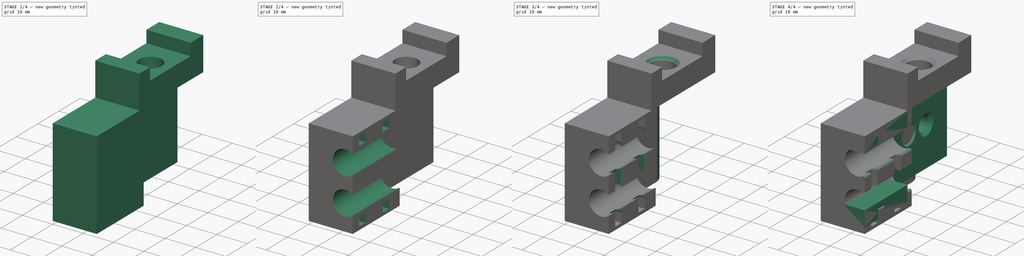
[diagram: build sequence overview — one tinted view per stage of 4, left to right]
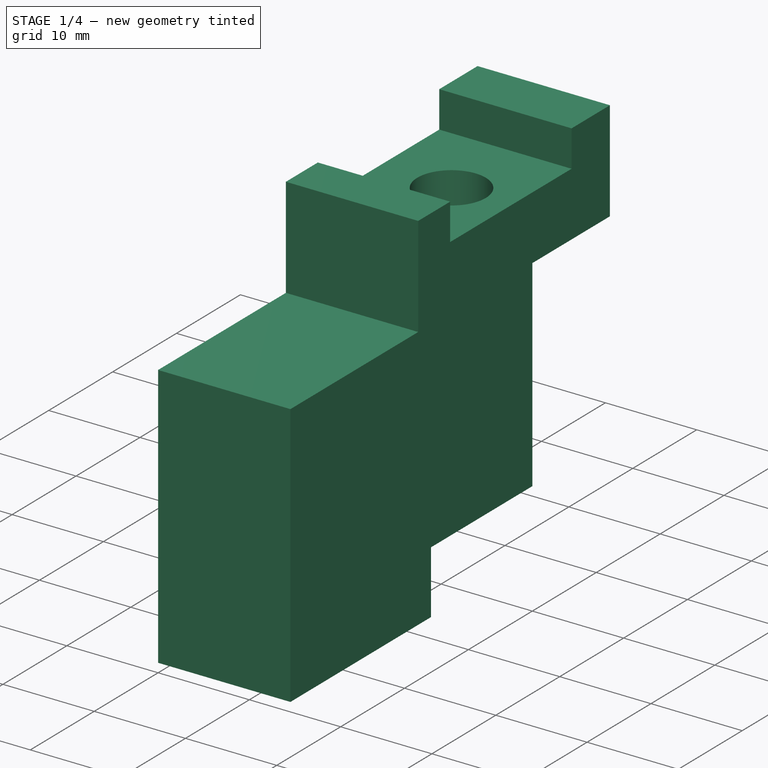
[diagram: stage 1 of 4 — iso view after this stage's code; geometry added in this stage tinted green]
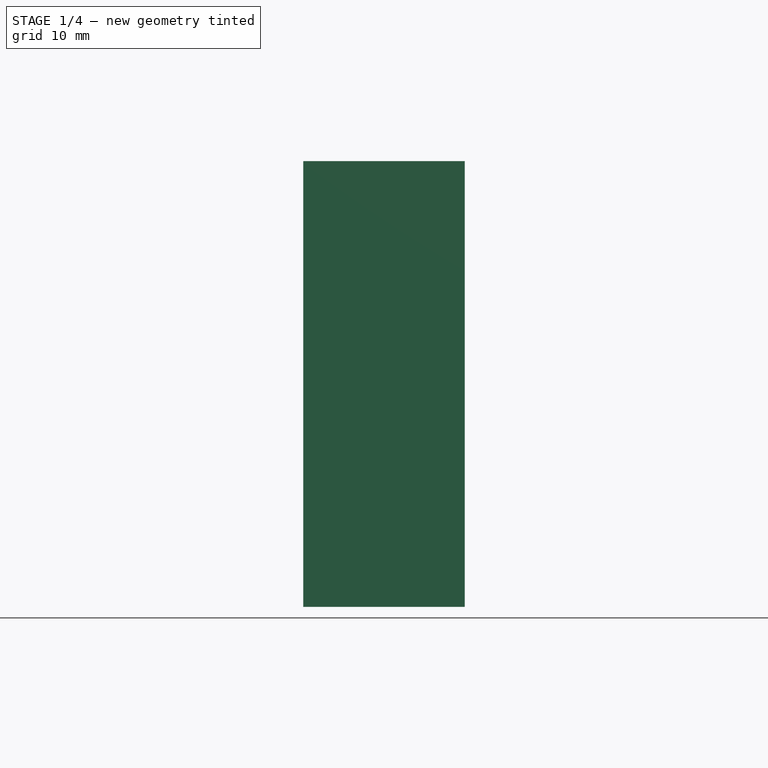
[diagram: stage 1 of 4 — front view after this stage's code; geometry added in this stage tinted green]
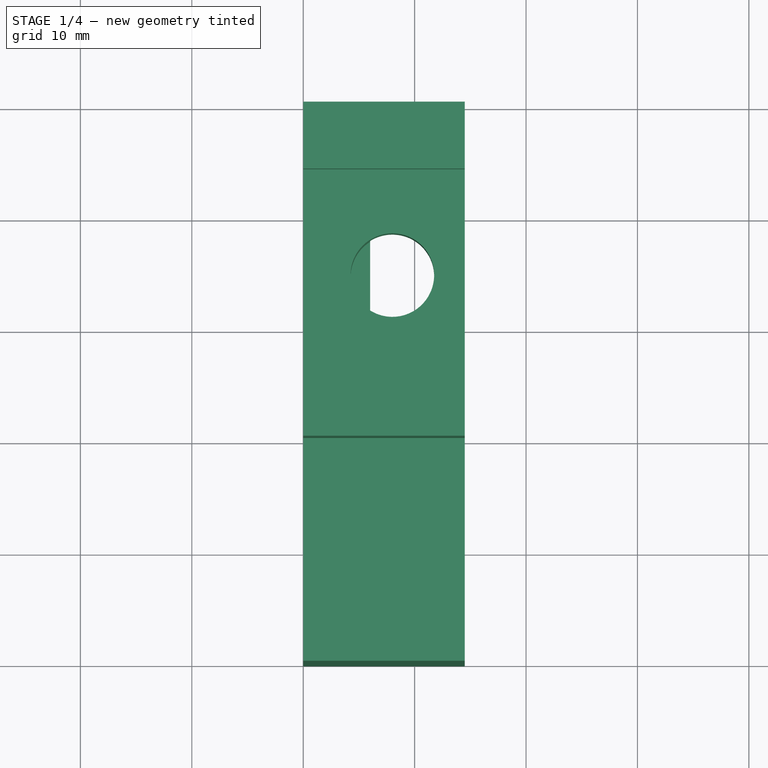
[diagram: stage 1 of 4 — top view after this stage's code; geometry added in this stage tinted green]
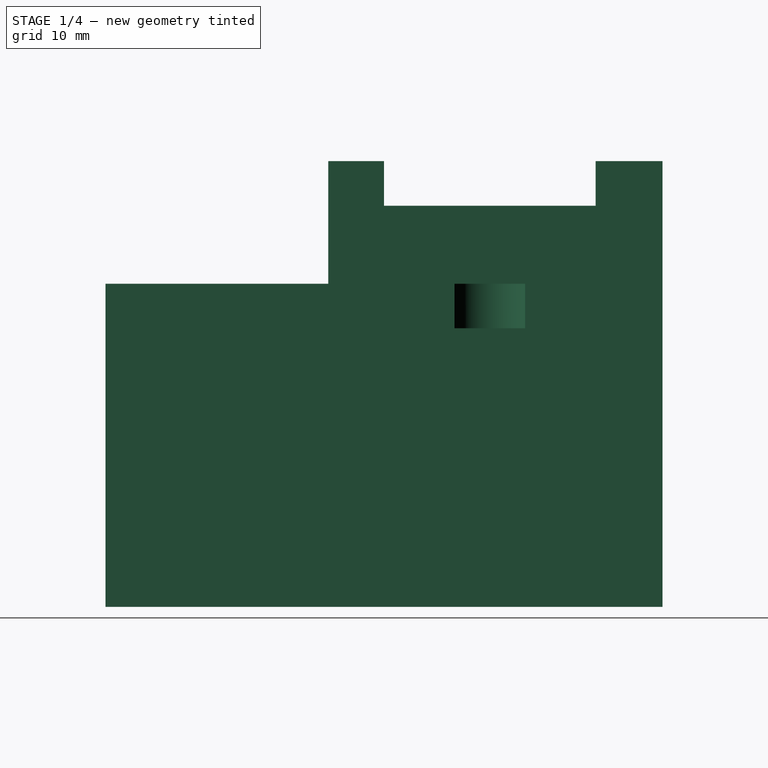
[diagram: stage 1 of 4 — right view after this stage's code; geometry added in this stage tinted green]
FCSTD DOCUMENT  (FreeCAD 0.17R13662 (Git))
Label: y_cable_mount
License: CreativeCommons Attribution-ShareAlike
LicenseURL: http://creativecommons.org/licenses/by-sa/4.0/
objects: Sketcher::SketchObject×8, PartDesign::Pocket×7, PartDesign::Fillet×2, Part::FeaturePython×1, PartDesign::Pad×1, PartDesign::Chamfer×1, PartDesign::Body×1
note: 29 computed .brp shape members not serialized (recipe doc carries the construction recipe); baked Part::Feature solids carry a one-line shape summary decoded from their .brp

FEATURE [Sketcher::SketchObject] Sketch
  MapMode = 5
  Placement = pos=(0,0,0) rot=(0.57735,0.57735,0.57735;2.0944rad)
  Support = -> [YZ_Plane]
  sketch-geometry (10):
    g0: LineSegment StartX=0 StartY=-11 StartZ=0 EndX=20 EndY=-11 EndZ=0
    g1: LineSegment StartX=20 StartY=-11 StartZ=0 EndX=20 EndY=0 EndZ=0
    g2: LineSegment StartX=20 StartY=0 StartZ=0 EndX=25 EndY=0 EndZ=0
    g3: LineSegment StartX=25 StartY=0 StartZ=0 EndX=25 EndY=-4 EndZ=0
    g4: LineSegment StartX=25 StartY=-4 StartZ=0 EndX=44 EndY=-4 EndZ=0
    g5: LineSegment StartX=44 StartY=-4 StartZ=0 EndX=44 EndY=0 EndZ=0
    g6: LineSegment StartX=44 StartY=0 StartZ=0 EndX=50 EndY=0 EndZ=0
    g7: LineSegment StartX=50 StartY=0 StartZ=0 EndX=50 EndY=-40 EndZ=0
    g8: LineSegment StartX=50 StartY=-40 StartZ=0 EndX=0 EndY=-40 EndZ=0
    g9: LineSegment StartX=0 StartY=-40 StartZ=0 EndX=0 EndY=-11 EndZ=0
  constraints (30):
    c: Coincident(g0,g1)
    c: Coincident(g1,g2)
    c: Coincident(g2,g3)
    c: Coincident(g3,g4)
    c: Coincident(g4,g5)
    c: Coincident(g5,g6)
    c: Coincident(g6,g7)
    c: Coincident(g7,g8)
    c: Coincident(g8,g9)
    c: Coincident(g0,g9)
    c: PointOnObject(g1,g-1)
    c: PointOnObject(g5,g-1)
    c: Vertical(g5)
    c: Vertical(g3)
    c: Vertical(g1)
    c: Vertical(g9)
    c: Vertical(g7)
    c: Horizontal(g6)
    c: Horizontal(g2)
    c: Horizontal(g4)
    c: Horizontal(g0)
    c: Horizontal(g8)
    c: DistanceX(g1) = 20
    c: DistanceX(g2,g2) = 5
    c: DistanceY(g3,g3) = 4
    c: DistanceX(g4,g4) = 19
    c: DistanceX(g6,g6) = 6
    c: DistanceY(g7,g7) = 40
    c: DistanceY(g1,g1) = 11
    c: PointOnObject(g0,g-2)
FEATURE [PartDesign::Pad] Pad
  Length = 14.5
  Length2 = 100
  Placement = pos=(0,0,0) rot=(0.57735,0.57735,0.57735;2.0944rad)
  Profile = -> Sketch
  Type = 0
FEATURE [Sketcher::SketchObject] Sketch001
  MapMode = 5
  Placement = pos=(0,0,-4) rot=(0,0,-1;1.5708rad)
  Support = -> [Pad]
  sketch-geometry (1):
    g0: Circle CenterX=-34.5 CenterY=8 CenterZ=0 NormalX=0 NormalY=0 NormalZ=1 AngleXU=0 Radius=3.75
  constraints (3):
    c: DistanceX(g0) = -34.5
    c: DistanceY(g0) = 8
    c: Radius(g0) = 3.75
FEATURE [PartDesign::Pocket] Pocket
  BaseFeature = -> Pad
  Length = 11
  Length2 = 100
  Placement = pos=(0,0,0) rot=(0.57735,0.57735,0.57735;2.0944rad)
  Profile = -> Sketch001
  Type = 0
FEATURE [Sketcher::SketchObject] Sketch002
  MapMode = 5
  Placement = pos=(6e-12,50,-6e-12) rot=(0.57735,0.57735,0.57735;4.18879rad)
  Support = -> [Pocket]
  sketch-geometry (4):
    g0: LineSegment StartX=-40 StartY=14.5 StartZ=0 EndX=-11 EndY=14.5 EndZ=0
    g1: LineSegment StartX=-11 StartY=14.5 StartZ=0 EndX=-11 EndY=6 EndZ=0
    g2: LineSegment StartX=-11 StartY=6 StartZ=0 EndX=-40 EndY=6 EndZ=0
    g3: LineSegment StartX=-40 StartY=6 StartZ=0 EndX=-40 EndY=14.5 EndZ=0
  constraints (12):
    c: Coincident(g0,g1)
    c: Coincident(g1,g2)
    c: Coincident(g2,g3)
    c: Coincident(g3,g0)
    c: Horizontal(g0)
    c: Horizontal(g2)
    c: Vertical(g1)
    c: Vertical(g3)
    c: DistanceX(g1) = -11
    c: DistanceY(g1) = 6
    c: DistanceY(g1,g1) = 8.5
    c: DistanceX(g2,g2) = 29
FEATURE [PartDesign::Pocket] Pocket001
  BaseFeature = -> Pocket
  Length = 28
  Length2 = 100
  Placement = pos=(0,0,0) rot=(0.57735,0.57735,0.57735;2.0944rad)
  Profile = -> Sketch002
  Type = 0
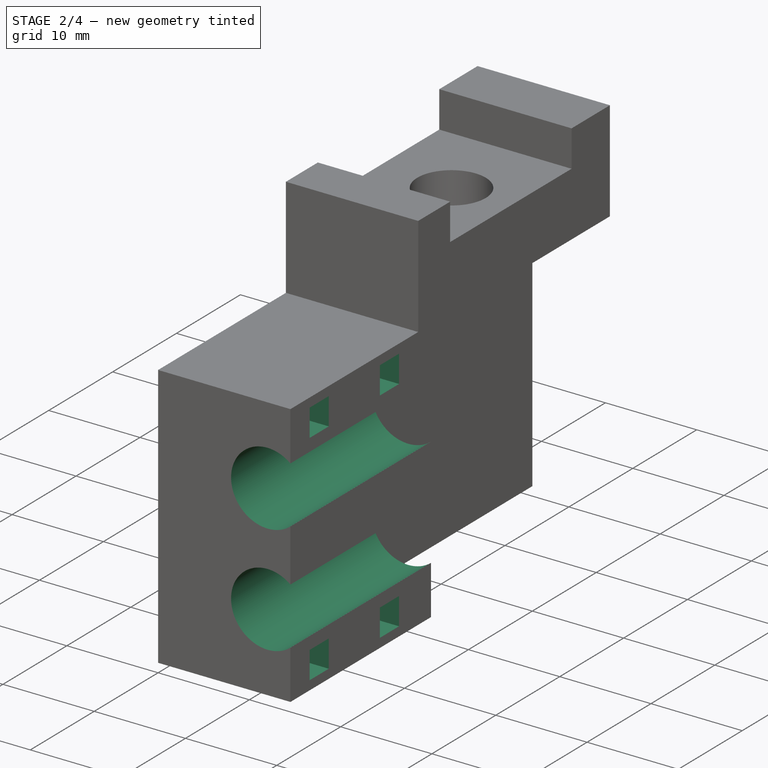
[diagram: stage 2 of 4 — iso view after this stage's code; geometry added in this stage tinted green]
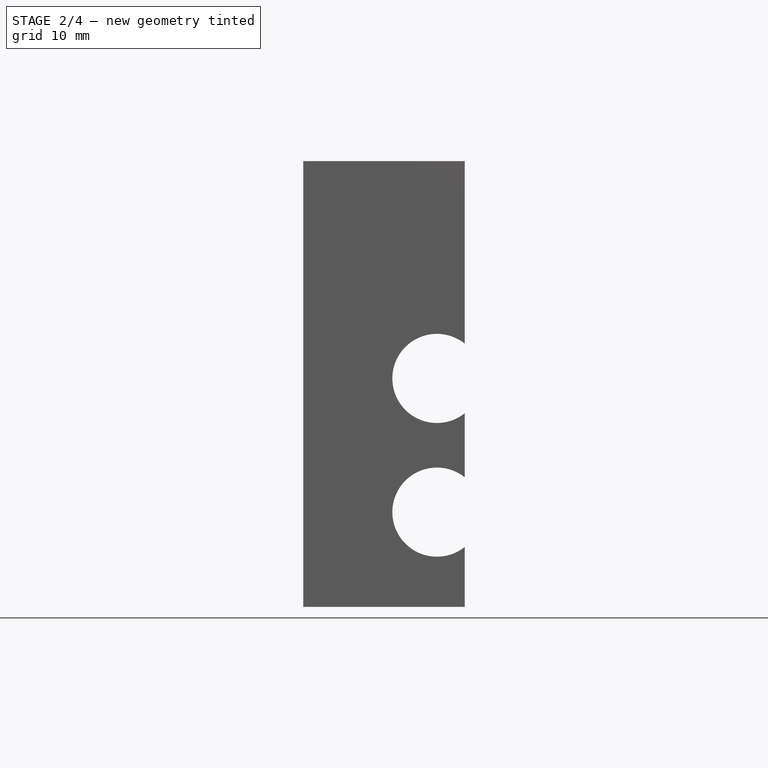
[diagram: stage 2 of 4 — front view after this stage's code; geometry added in this stage tinted green]
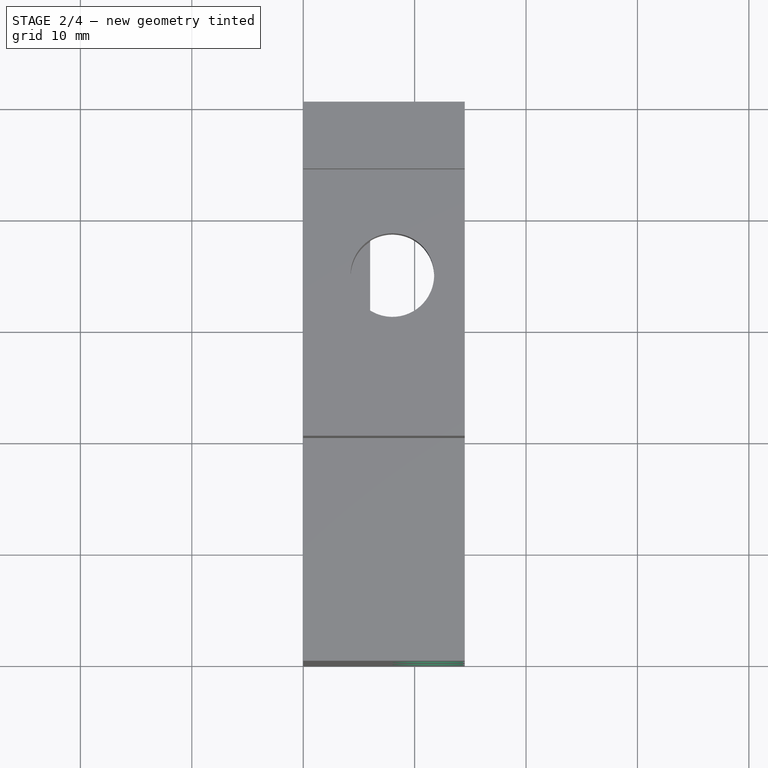
[diagram: stage 2 of 4 — top view after this stage's code; geometry added in this stage tinted green]
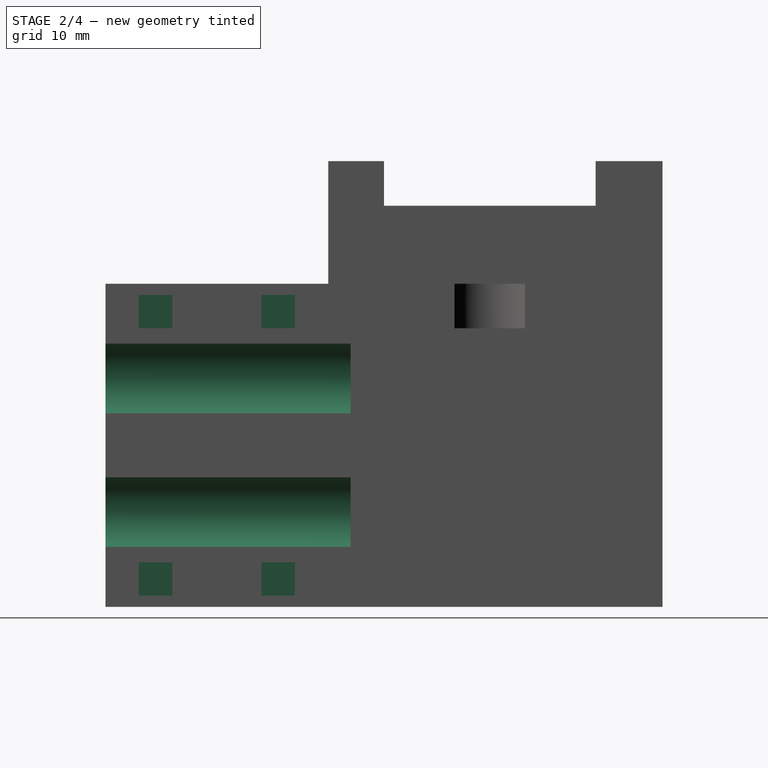
[diagram: stage 2 of 4 — right view after this stage's code; geometry added in this stage tinted green]
FEATURE [Sketcher::SketchObject] Sketch003
  MapMode = 5
  Placement = pos=(2e-12,22,-2e-12) rot=(0.57735,0.57735,0.57735;4.18879rad)
  Support = -> [Pocket001]
  sketch-geometry (2):
    g0: Circle CenterX=-19.5 CenterY=12 CenterZ=0 NormalX=0 NormalY=0 NormalZ=1 AngleXU=0 Radius=4
    g1: Circle CenterX=-31.5 CenterY=12 CenterZ=0 NormalX=0 NormalY=0 NormalZ=1 AngleXU=0 Radius=4
  constraints (6):
    c: DistanceX(g0) = -19.5
    c: DistanceY(g0) = 12
    c: Radius(g0) = 4
    c: DistanceX(g1,g0) = 12
    c: DistanceY(g1,g0) = 0
    c: Equal(g1,g0)
FEATURE [PartDesign::Pocket] Pocket002
  BaseFeature = -> Pocket001
  Length = 5
  Length2 = 100
  Placement = pos=(0,0,0) rot=(0.57735,0.57735,0.57735;2.0944rad)
  Profile = -> Sketch003
  Type = 1
FEATURE [Sketcher::SketchObject] Sketch004
  MapMode = 5
  Placement = pos=(14.5,-2e-12,2e-12) rot=(0.57735,0.57735,0.57735;2.0944rad)
  Support = -> [Pocket002]
  sketch-geometry (28):
    g0: LineSegment StartX=3 StartY=-12 StartZ=0 EndX=6 EndY=-12 EndZ=0
    g1: LineSegment StartX=6 StartY=-12 StartZ=0 EndX=6 EndY=-15 EndZ=0
    g2: LineSegment StartX=6 StartY=-15 StartZ=0 EndX=3 EndY=-15 EndZ=0
    g3: LineSegment StartX=3 StartY=-15 StartZ=0 EndX=3 EndY=-12 EndZ=0
    g4: LineSegment StartX=14 StartY=-12 StartZ=0 EndX=17 EndY=-12 EndZ=0
    g5: LineSegment StartX=17 StartY=-12 StartZ=0 EndX=17 EndY=-15 EndZ=0
    g6: LineSegment StartX=17 StartY=-15 StartZ=0 EndX=14 EndY=-15 EndZ=0
    g7: LineSegment StartX=14 StartY=-15 StartZ=0 EndX=14 EndY=-12 EndZ=0
    g8: LineSegment StartX=14 StartY=-36 StartZ=0 EndX=17 EndY=-36 EndZ=0
    g9: LineSegment StartX=17 StartY=-36 StartZ=0 EndX=17 EndY=-39 EndZ=0
    g10: LineSegment StartX=17 StartY=-39 StartZ=0 EndX=14 EndY=-39 EndZ=0
    g11: LineSegment StartX=14 StartY=-39 StartZ=0 EndX=14 EndY=-36 EndZ=0
    g12: LineSegment StartX=3 StartY=-36 StartZ=0 EndX=6 EndY=-36 EndZ=0
    g13: LineSegment StartX=6 StartY=-36 StartZ=0 EndX=6 EndY=-39 EndZ=0
    g14: LineSegment StartX=6 StartY=-39 StartZ=0 EndX=3 EndY=-39 EndZ=0
    g15: LineSegment StartX=3 StartY=-39 StartZ=0 EndX=3 EndY=-36 EndZ=0
    g16: LineSegment [constr] StartX=3 StartY=-15 StartZ=0 EndX=6 EndY=-15 EndZ=0
    g17: LineSegment [constr] StartX=6 StartY=-15 StartZ=0 EndX=6 EndY=-36 EndZ=0
    g18: LineSegment [constr] StartX=6 StartY=-36 StartZ=0 EndX=3 EndY=-36 EndZ=0
    g19: LineSegment [constr] StartX=3 StartY=-36 StartZ=0 EndX=3 EndY=-15 EndZ=0
    g20: LineSegment [constr] StartX=14 StartY=-15 StartZ=0 EndX=17 EndY=-15 EndZ=0
    g21: LineSegment [constr] StartX=17 StartY=-15 StartZ=0 EndX=17 EndY=-36 EndZ=0
    g22: LineSegment [constr] StartX=17 StartY=-36 StartZ=0 EndX=14 EndY=-36 EndZ=0
    g23: LineSegment [constr] StartX=14 StartY=-36 StartZ=0 EndX=14 EndY=-15 EndZ=0
    g24: LineSegment [constr] StartX=6 StartY=-12 StartZ=0 EndX=14 EndY=-12 EndZ=0
    g25: LineSegment [constr] StartX=14 StartY=-12 StartZ=0 EndX=14 EndY=-15 EndZ=0
    g26: LineSegment [constr] StartX=14 StartY=-15 StartZ=0 EndX=6 EndY=-15 EndZ=0
    g27: LineSegment [constr] StartX=6 StartY=-15 StartZ=0 EndX=6 EndY=-12 EndZ=0
  constraints (78):
    c: Coincident(g0,g1)
    c: Coincident(g1,g2)
    c: Coincident(g2,g3)
    c: Coincident(g3,g0)
    c: Horizontal(g0)
    c: Horizontal(g2)
    c: Vertical(g1)
    c: Vertical(g3)
    c: Coincident(g4,g5)
    c: Coincident(g5,g6)
    c: Coincident(g6,g7)
    c: Coincident(g7,g4)
    c: Horizontal(g4)
    c: Horizontal(g6)
    c: Vertical(g5)
    c: Vertical(g7)
    c: Coincident(g8,g9)
    c: Coincident(g9,g10)
    c: Coincident(g10,g11)
    c: Coincident(g11,g8)
    c: Horizontal(g8)
    c: Horizontal(g10)
    c: Vertical(g9)
    c: Vertical(g11)
    c: Coincident(g12,g13)
    c: Coincident(g13,g14)
    c: Coincident(g14,g15)
    c: Coincident(g15,g12)
    c: Horizontal(g12)
    c: Horizontal(g14)
    c: Vertical(g13)
    c: Vertical(g15)
    c: Coincident(g16,g17)
    c: Coincident(g17,g18)
    c: Coincident(g18,g19)
    c: Coincident(g19,g16)
    c: Horizontal(g16)
    c: Horizontal(g18)
    c: Vertical(g17)
    c: Vertical(g19)
    c: Coincident(g20,g21)
    c: Coincident(g21,g22)
    c: Coincident(g22,g23)
    c: Coincident(g23,g20)
    c: Horizontal(g20)
    c: Horizontal(g22)
    c: Vertical(g21)
    c: Vertical(g23)
    c: Coincident(g8,g21)
    c: Coincident(g5,g20)
    c: Coincident(g6,g20)
    c: Coincident(g8,g22)
    c: Coincident(g12,g17)
    c: Coincident(g12,g18)
    c: Coincident(g1,g16)
    c: Coincident(g2,g16)
    c: Equal(g2,g1)
    c: Equal(g1,g7)
    c: Equal(g7,g6)
    c: Equal(g6,g9)
    c: Equal(g9,g13)
    c: DistanceY(g5,g5) = 3
    c: DistanceY(g0) = -12
    c: DistanceY(g19,g19) = 21
    c: DistanceX(g0) = 3
    c: Coincident(g24,g25)
    c: Coincident(g25,g26)
    c: Coincident(g26,g27)
    c: Coincident(g27,g24)
    c: Horizontal(g24)
    c: Horizontal(g26)
    c: Vertical(g25)
    c: Vertical(g27)
    c: Coincident(g4,g24)
    c: Coincident(g6,g25)
    c: Coincident(g0,g24)
    c: DistanceX(g26,g26) = 8
    c: Equal(g23,g17)
FEATURE [PartDesign::Pocket] Pocket003
  BaseFeature = -> Pocket002
  Length = 12
  Length2 = 100
  Placement = pos=(0,0,0) rot=(0.57735,0.57735,0.57735;2.0944rad)
  Profile = -> Sketch004
  Type = 0
FEATURE [Sketcher::SketchObject] Sketch005
  MapMode = 5
  Placement = pos=(1e-12,-1e-12,-12) rot=(0.707107,0.707107,0;3.14159rad)
  Support = -> [Pocket003]
  sketch-geometry (12):
    g0: LineSegment StartX=3 StartY=2.5 StartZ=0 EndX=6 EndY=2.5 EndZ=0
    g1: LineSegment StartX=6 StartY=2.5 StartZ=0 EndX=6 EndY=5.5 EndZ=0
    g2: LineSegment StartX=6 StartY=5.5 StartZ=0 EndX=3 EndY=5.5 EndZ=0
    g3: LineSegment StartX=3 StartY=5.5 StartZ=0 EndX=3 EndY=2.5 EndZ=0
    g4: LineSegment StartX=14 StartY=2.5 StartZ=0 EndX=17 EndY=2.5 EndZ=0
    g5: LineSegment StartX=17 StartY=2.5 StartZ=0 EndX=17 EndY=5.5 EndZ=0
    g6: LineSegment StartX=17 StartY=5.5 StartZ=0 EndX=14 EndY=5.5 EndZ=0
    g7: LineSegment StartX=14 StartY=5.5 StartZ=0 EndX=14 EndY=2.5 EndZ=0
    g8: LineSegment [constr] StartX=6 StartY=5.5 StartZ=0 EndX=14 EndY=5.5 EndZ=0
    g9: LineSegment [constr] StartX=14 StartY=5.5 StartZ=0 EndX=14 EndY=2.5 EndZ=0
    g10: LineSegment [constr] StartX=14 StartY=2.5 StartZ=0 EndX=6 EndY=2.5 EndZ=0
    g11: LineSegment [constr] StartX=6 StartY=2.5 StartZ=0 EndX=6 EndY=5.5 EndZ=0
  constraints (34):
    c: Coincident(g0,g1)
    c: Coincident(g1,g2)
    c: Coincident(g2,g3)
    c: Coincident(g3,g0)
    c: Horizontal(g0)
    c: Horizontal(g2)
    c: Vertical(g1)
    c: Vertical(g3)
    c: Coincident(g4,g5)
    c: Coincident(g5,g6)
    c: Coincident(g6,g7)
    c: Coincident(g7,g4)
    c: Horizontal(g4)
    c: Horizontal(g6)
    c: Vertical(g5)
    c: Vertical(g7)
    c: DistanceX(g0) = 3
    c: DistanceY(g0) = 2.5
    c: Equal(g3,g2)
    c: DistanceX(g2,g2) = 3
    c: Coincident(g8,g9)
    c: Coincident(g9,g10)
    c: Coincident(g10,g11)
    c: Coincident(g11,g8)
    c: Horizontal(g8)
    c: Horizontal(g10)
    c: Vertical(g9)
    c: Vertical(g11)
    c: Coincident(g4,g9)
    c: Coincident(g1,g8)
    c: Coincident(g0,g10)
    c: Coincident(g6,g8)
    c: DistanceX(g8,g8) = 8
    c: Equal(g6,g2)
FEATURE [PartDesign::Pocket] Pocket004
  BaseFeature = -> Pocket003
  Length = 27
  Length2 = 100
  Placement = pos=(0,0,0) rot=(0.57735,0.57735,0.57735;2.0944rad)
  Profile = -> Sketch005
  Reversed = true
  Type = 0
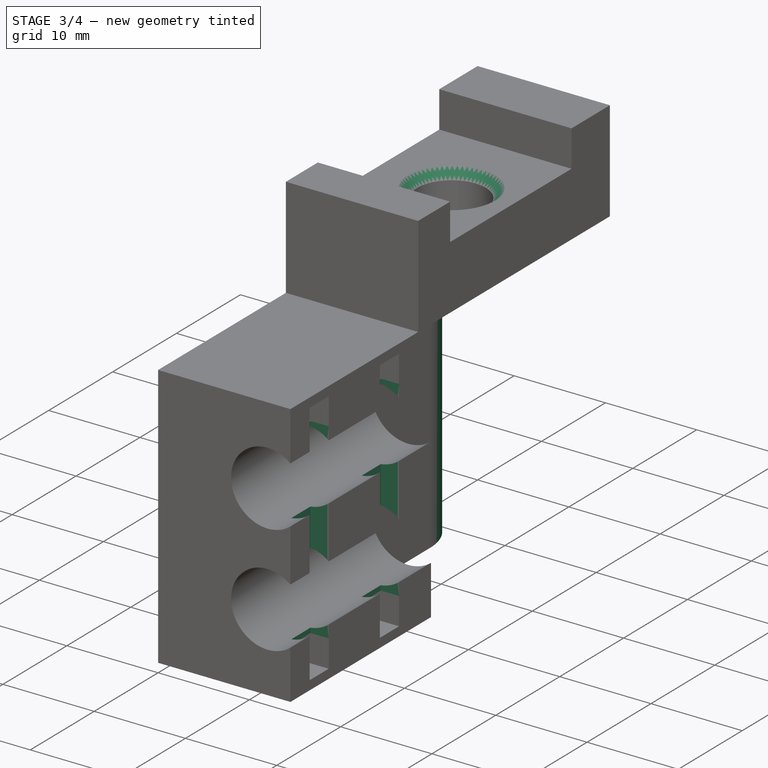
[diagram: stage 3 of 4 — iso view after this stage's code; geometry added in this stage tinted green]
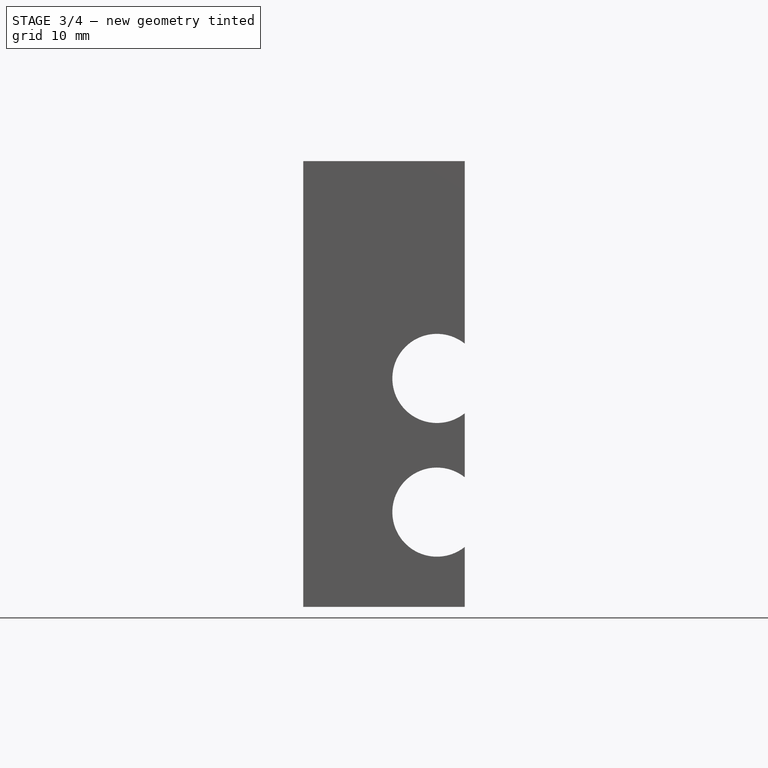
[diagram: stage 3 of 4 — front view after this stage's code; geometry added in this stage tinted green]
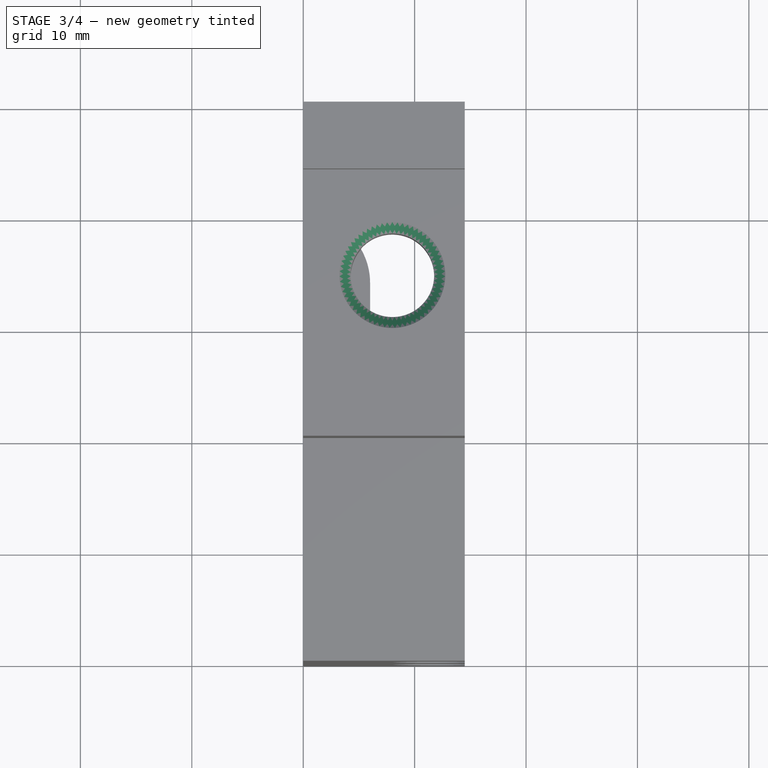
[diagram: stage 3 of 4 — top view after this stage's code; geometry added in this stage tinted green]
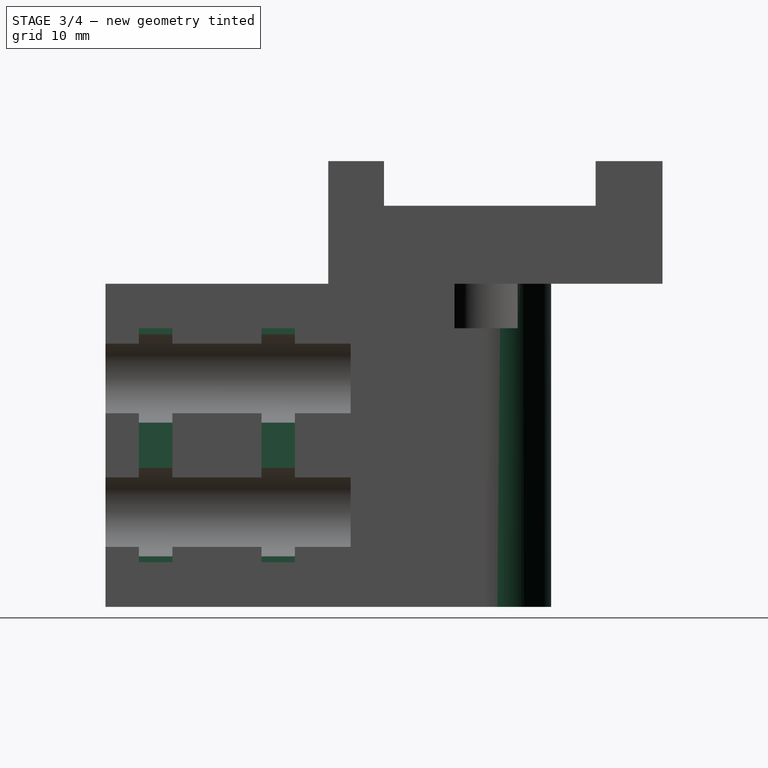
[diagram: stage 3 of 4 — right view after this stage's code; geometry added in this stage tinted green]
FEATURE [Sketcher::SketchObject] Sketch006
  MapMode = 5
  Placement = pos=(14.5,-2e-12,2e-12) rot=(0.57735,0.57735,0.57735;2.0944rad)
  Support = -> [Pocket004]
  sketch-geometry (8):
    g0: LineSegment StartX=3 StartY=-15 StartZ=0 EndX=6 EndY=-15 EndZ=0
    g1: LineSegment StartX=6 StartY=-15 StartZ=0 EndX=6 EndY=-36 EndZ=0
    g2: LineSegment StartX=6 StartY=-36 StartZ=0 EndX=3 EndY=-36 EndZ=0
    g3: LineSegment StartX=3 StartY=-36 StartZ=0 EndX=3 EndY=-15 EndZ=0
    g4: LineSegment StartX=14 StartY=-15 StartZ=0 EndX=17 EndY=-15 EndZ=0
    g5: LineSegment StartX=17 StartY=-15 StartZ=0 EndX=17 EndY=-36 EndZ=0
    g6: LineSegment StartX=17 StartY=-36 StartZ=0 EndX=14 EndY=-36 EndZ=0
    g7: LineSegment StartX=14 StartY=-36 StartZ=0 EndX=14 EndY=-15 EndZ=0
  constraints (24):
    c: Coincident(g0,g1)
    c: Coincident(g1,g2)
    c: Coincident(g2,g3)
    c: Coincident(g3,g0)
    c: Horizontal(g0)
    c: Horizontal(g2)
    c: Vertical(g1)
    c: Vertical(g3)
    c: Coincident(g4,g5)
    c: Coincident(g5,g6)
    c: Coincident(g6,g7)
    c: Coincident(g7,g4)
    c: Horizontal(g4)
    c: Horizontal(g6)
    c: Vertical(g5)
    c: Vertical(g7)
    c: DistanceX(g0) = 3
    c: DistanceY(g0) = -15
    c: DistanceY(g3,g3) = 21
    c: PointOnObject(g4,g0)
    c: DistanceX(g0,g4) = 8
    c: Equal(g4,g0)
    c: Equal(g7,g1)
    c: DistanceX(g0,g0) = 3
FEATURE [PartDesign::Pocket] Pocket005
  BaseFeature = -> Pocket004
  Length = 2
  Length2 = 100
  Placement = pos=(0,0,0) rot=(0.57735,0.57735,0.57735;2.0944rad)
  Profile = -> Sketch006
  Type = 0
FEATURE [Sketcher::SketchObject] Sketch007
  MapMode = 5
  Placement = pos=(5e-12,-5e-12,-40) rot=(0.707107,0.707107,0;3.14159rad)
  Support = -> [Pocket005]
  sketch-geometry (4):
    g0: ArcOfCircle CenterX=34 CenterY=0 CenterZ=0 NormalX=0 NormalY=0 NormalZ=1 AngleXU=0 Radius=6 StartAngle=0 EndAngle=1.5708
    g1: LineSegment StartX=34 StartY=6 StartZ=0 EndX=50 EndY=6 EndZ=0
    g2: LineSegment StartX=50 StartY=6 StartZ=0 EndX=50 EndY=0 EndZ=0
    g3: LineSegment StartX=50 StartY=0 StartZ=0 EndX=40 EndY=0 EndZ=0
  constraints (13):
    c: Coincident(g1,g2)
    c: Coincident(g2,g3)
    c: Coincident(g0,g3)
    c: Horizontal(g3)
    c: Horizontal(g1)
    c: Vertical(g2)
    c: PointOnObject(g0,g-1)
    c: PointOnObject(g0,g-1)
    c: DistanceX(g0,g0) = 0
    c: Coincident(g0,g1)
    c: DistanceY(g0) = 6
    c: DistanceX(g2) = 50
    c: DistanceX(g0) = 40
FEATURE [PartDesign::Pocket] Pocket006
  BaseFeature = -> Pocket005
  Length = 29
  Length2 = 100
  Placement = pos=(0,0,0) rot=(0.57735,0.57735,0.57735;2.0944rad)
  Profile = -> Sketch007
  Type = 0
FEATURE [PartDesign::Chamfer] Chamfer
  Base = -> Pocket006 [Edge115]
  BaseFeature = -> Pocket006
  Placement = pos=(0,0,0) rot=(0.57735,0.57735,0.57735;2.0944rad)
  Size = 1
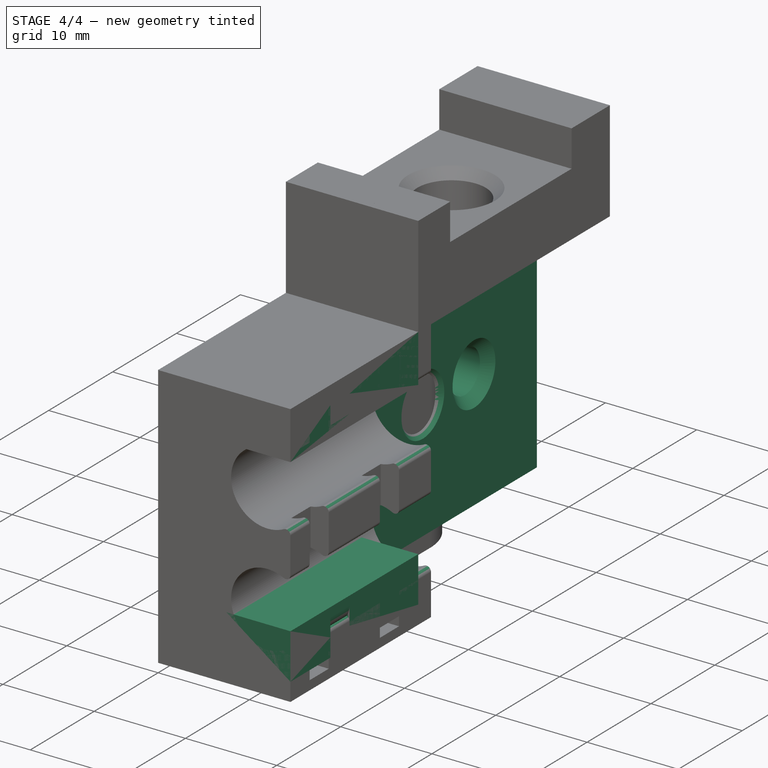
[diagram: stage 4 of 4 — iso view after this stage's code; geometry added in this stage tinted green]
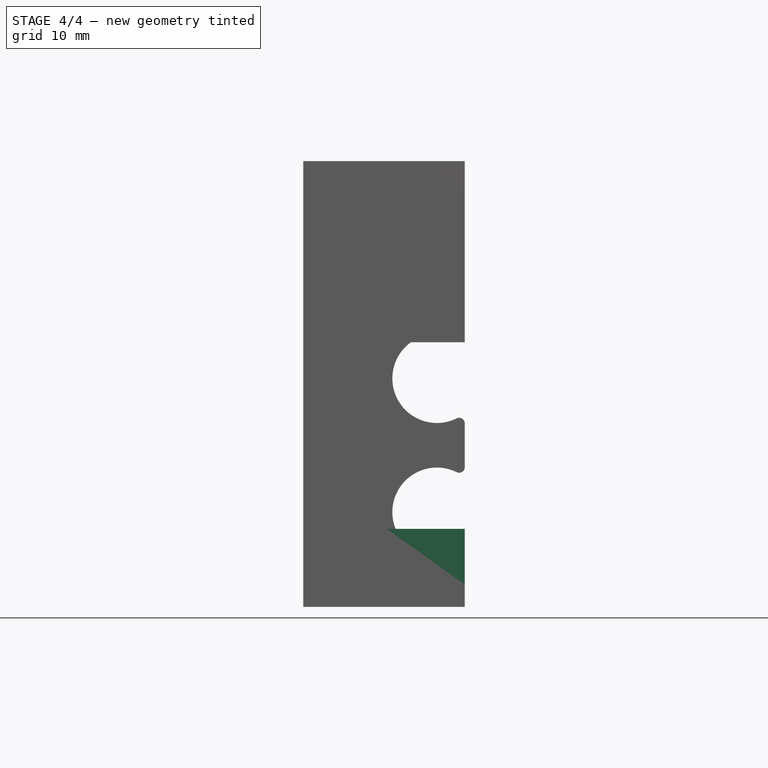
[diagram: stage 4 of 4 — front view after this stage's code; geometry added in this stage tinted green]
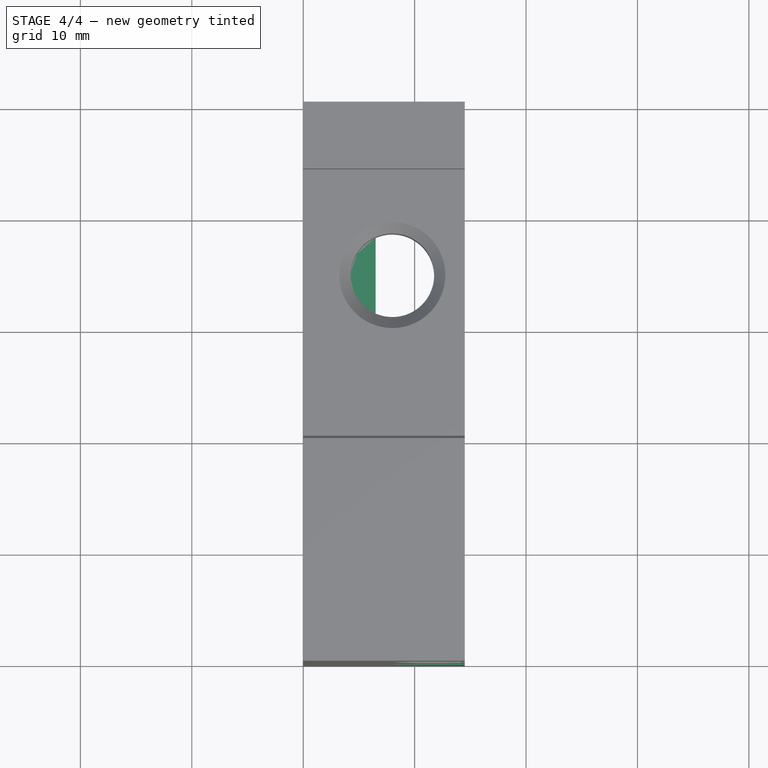
[diagram: stage 4 of 4 — top view after this stage's code; geometry added in this stage tinted green]
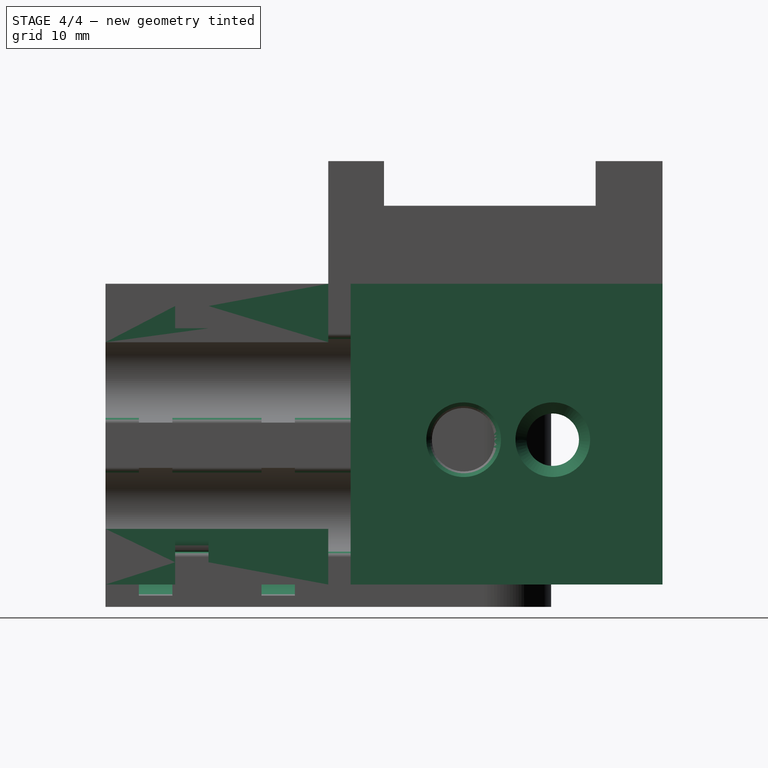
[diagram: stage 4 of 4 — right view after this stage's code; geometry added in this stage tinted green]
FEATURE [Part::FeaturePython] Y_chain_to_bed_mount_01  # a2plus imported part (geometry in sourceFile) (typed FeaturePython)
  fixedPosition = true
  sourceFile = <userpath>/Projects/taz-quiver/production_parts/printed_parts/y_chain-to-bed_mount/Y_chain-to-bed_mount.fcstd
  timeLastImport = 1.54766e+09
  updateColors = true
FEATURE [PartDesign::Fillet] Fillet
  Base = -> Chamfer [Edge152,Edge157,Edge165,Edge160,Edge200,Edge222,Edge208,Edge218]
  BaseFeature = -> Chamfer
  Placement = pos=(0,0,0) rot=(0.57735,0.57735,0.57735;2.0944rad)
  Radius = 2.99
FEATURE [PartDesign::Fillet] Fillet001
  Base = -> Fillet [Edge204,Edge200,Edge195,Edge140,Edge146,Edge150,Edge160,Edge164,Edge168,Edge22,Edge26,Edge32]
  BaseFeature = -> Fillet
  Placement = pos=(0,0,0) rot=(0.57735,0.57735,0.57735;2.0944rad)
  Radius = 0.5
FEATURE [PartDesign::Body] Body
  Group = -> [Sketch,Pad,Sketch001,Pocket,Sketch002,Pocket001,Sketch003,Pocket002,Sketch004,Pocket003,Sketch005,Pocket004,Sketch006,Pocket005,Sketch007,Pocket006,Chamfer,Fillet,Fillet001]
  Origin = -> Origin
  Tip = -> Fillet001
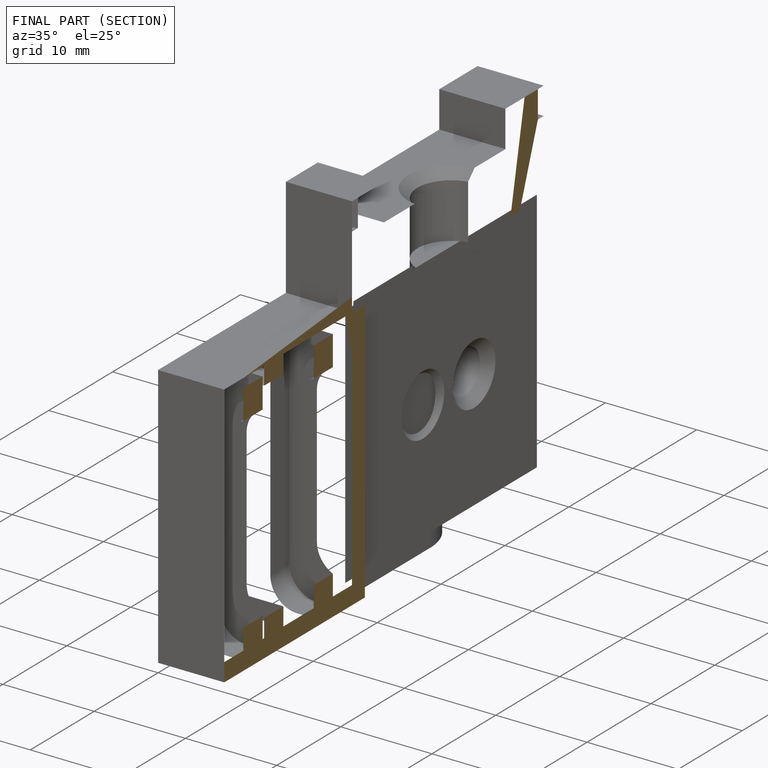
[diagram: finished part — half-section view (interior)]
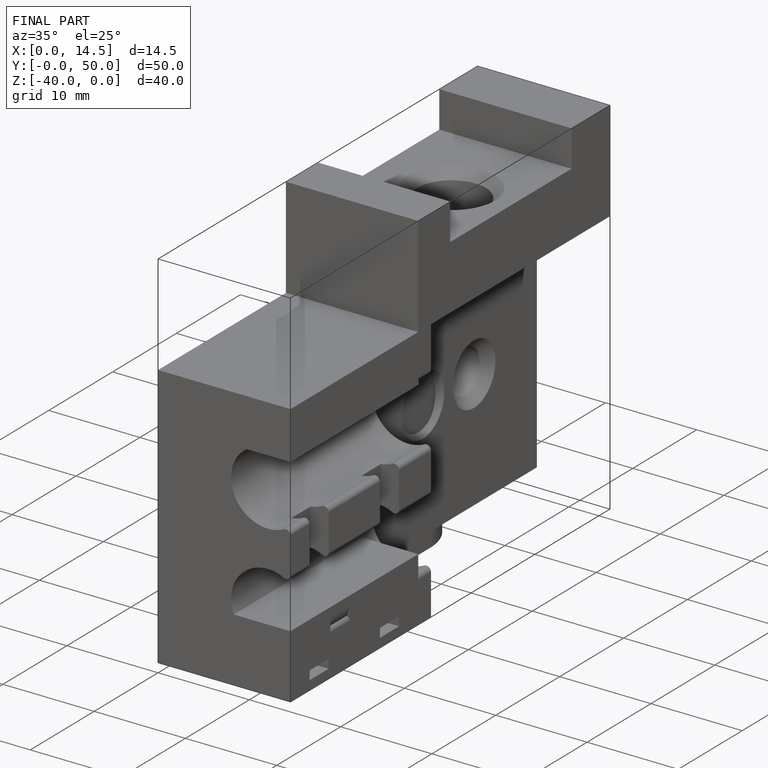
[diagram: finished part — iso view with bounding-box wireframe]
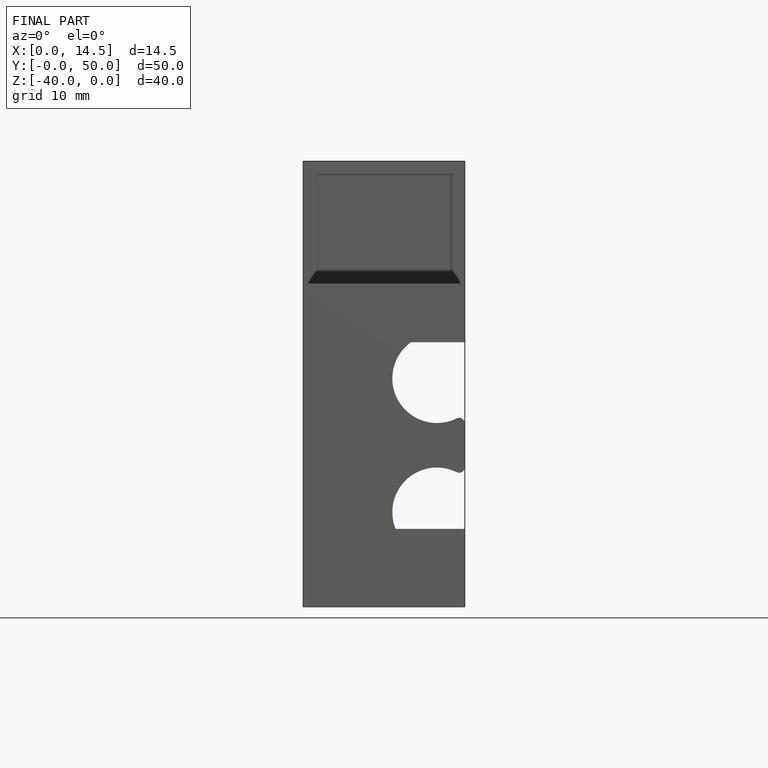
[diagram: finished part — front view with bounding-box wireframe]
